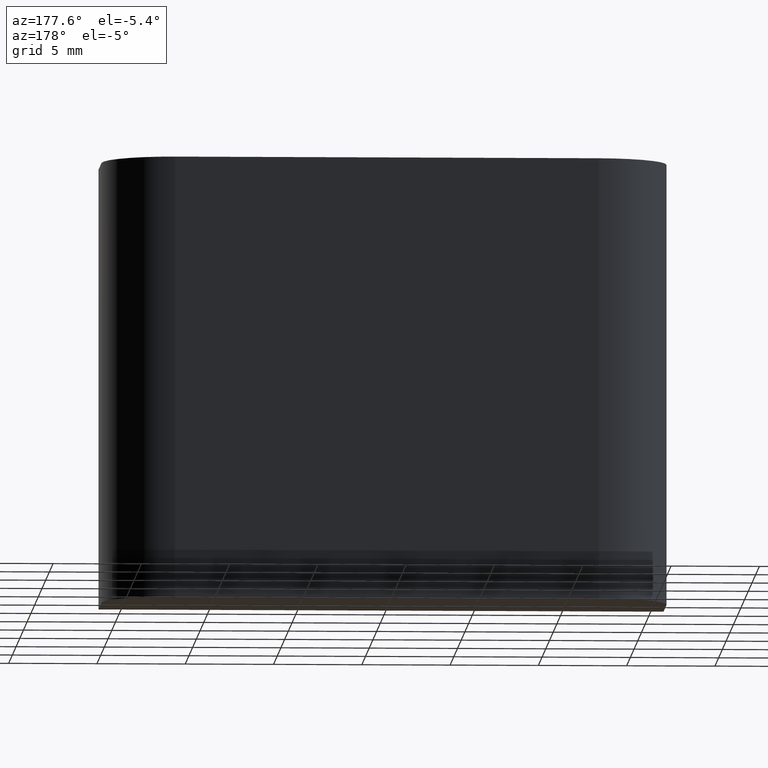
[diagram: clean part render]
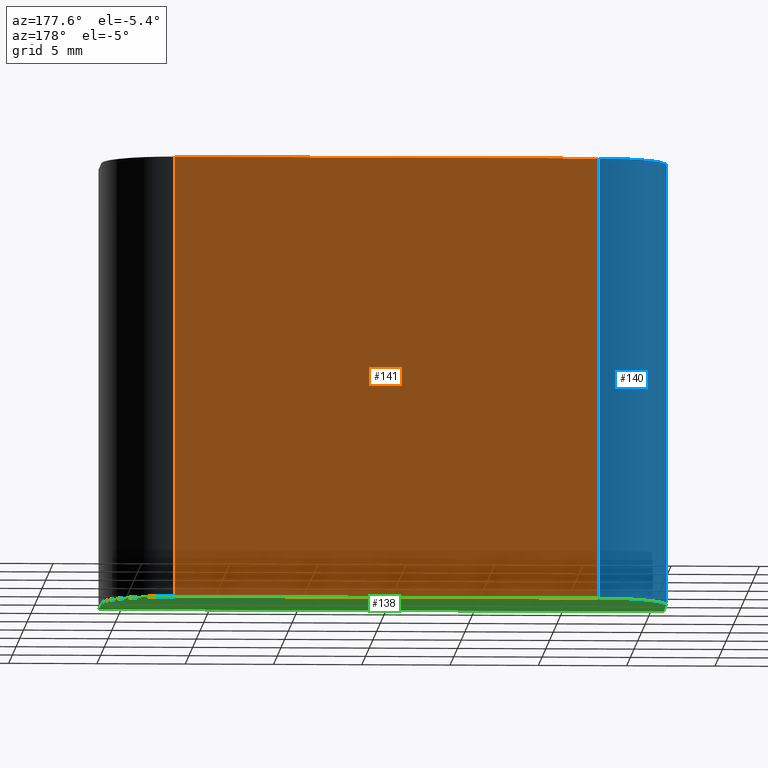
[diagram: same view with three faces highlighted in distinct colors, each labeled with its STEP entity id]
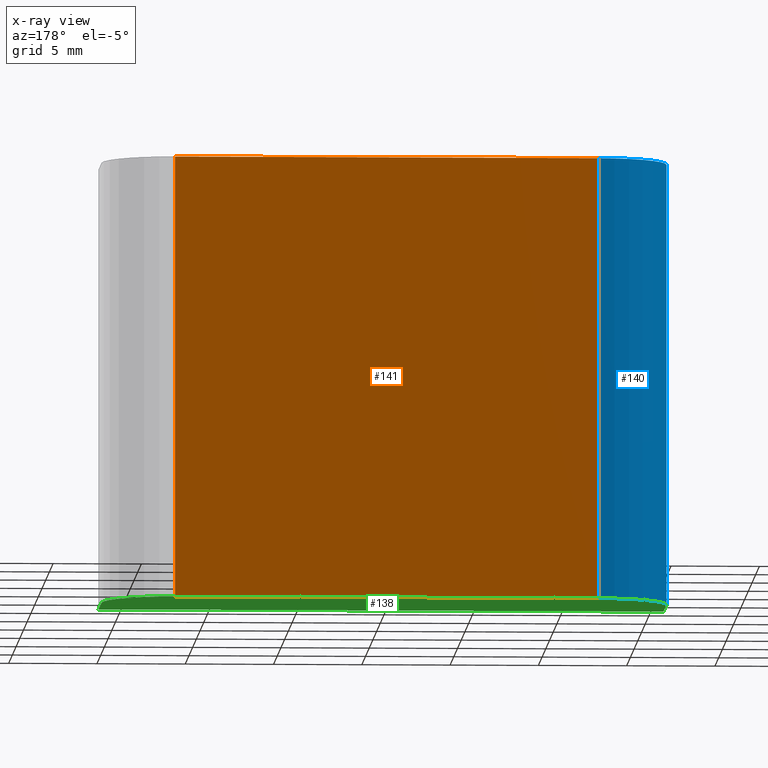
[diagram: x-ray of the same camera — body ghosted, the three highlighted faces saturated]
A machine part, auxiliary view with three faces highlighted in distinct colors.
The next image is the same camera in x-ray (body ghosted, the three faces saturated) — at least one of them is partly hidden behind the body in this view.
Their STEP definitions:

[orange] entity #141 — the highlighted planar face has unit normal (0, 1, 0).
#21=FACE_OUTER_BOUND('',#29,.T.);
#29=EDGE_LOOP('',(#110,#111,#112,#113));
#41=LINE('',#230,#55);
#45=LINE('',#241,#59);
#46=LINE('',#244,#60);
#47=LINE('',#245,#61);
#55=VECTOR('',#187,10.);
#59=VECTOR('',#199,10.);
#60=VECTOR('',#202,10.);
#61=VECTOR('',#203,10.);
#70=VERTEX_POINT('',#227);
#71=VERTEX_POINT('',#229);
#74=VERTEX_POINT('',#239);
#75=VERTEX_POINT('',#243);
#82=EDGE_CURVE('',#71,#70,#41,.T.);
#88=EDGE_CURVE('',#70,#74,#45,.T.);
#89=EDGE_CURVE('',#74,#75,#46,.T.);
#90=EDGE_CURVE('',#71,#75,#47,.T.);
#110=ORIENTED_EDGE('',*,*,#89,.T.);
#111=ORIENTED_EDGE('',*,*,#90,.F.);
#112=ORIENTED_EDGE('',*,*,#82,.T.);
#113=ORIENTED_EDGE('',*,*,#88,.T.);
#134=PLANE('',#172);
#141=ADVANCED_FACE('',(#21),#134,.T.);
#172=AXIS2_PLACEMENT_3D('',#242,#200,#201);
#187=DIRECTION('',(-1.,0.,0.));
#199=DIRECTION('',(0.,0.,1.));
#200=DIRECTION('center_axis',(0.,1.,0.));
#201=DIRECTION('ref_axis',(0.,0.,1.));
#202=DIRECTION('',(1.,0.,0.));
#203=DIRECTION('',(0.,0.,1.));
#227=CARTESIAN_POINT('',(-12.,4.,-12.5));
#229=CARTESIAN_POINT('',(12.,4.,-12.5));
#230=CARTESIAN_POINT('',(12.,4.,-12.5));
#239=CARTESIAN_POINT('',(-12.,4.,12.5));
#241=CARTESIAN_POINT('',(-12.,4.,0.));
#242=CARTESIAN_POINT('Origin',(-12.,4.,0.));
#243=CARTESIAN_POINT('',(12.,4.,12.5));
#244=CARTESIAN_POINT('',(12.,4.,12.5));
#245=CARTESIAN_POINT('',(12.,4.,0.));

[blue] entity #140 — the highlighted cylindrical surface (partial cylindrical patch) has radius 4 mm, axis along (0, 0, 1).
#16=CYLINDRICAL_SURFACE('',#170,4.);
#20=FACE_OUTER_BOUND('',#28,.T.);
#28=EDGE_LOOP('',(#106,#107,#108,#109));
#34=CIRCLE('',#167,4.);
#36=CIRCLE('',#171,4.);
#43=LINE('',#236,#57);
#45=LINE('',#241,#59);
#57=VECTOR('',#193,10.);
#59=VECTOR('',#199,10.);
#69=VERTEX_POINT('',#225);
#70=VERTEX_POINT('',#227);
#73=VERTEX_POINT('',#234);
#74=VERTEX_POINT('',#239);
#81=EDGE_CURVE('',#70,#69,#34,.T.);
#85=EDGE_CURVE('',#69,#73,#43,.T.);
#87=EDGE_CURVE('',#73,#74,#36,.T.);
#88=EDGE_CURVE('',#70,#74,#45,.T.);
#106=ORIENTED_EDGE('',*,*,#87,.T.);
#107=ORIENTED_EDGE('',*,*,#88,.F.);
#108=ORIENTED_EDGE('',*,*,#81,.T.);
#109=ORIENTED_EDGE('',*,*,#85,.T.);
#140=ADVANCED_FACE('',(#20),#16,.T.);
#167=AXIS2_PLACEMENT_3D('',#228,#185,#186);
#170=AXIS2_PLACEMENT_3D('',#238,#195,#196);
#171=AXIS2_PLACEMENT_3D('',#240,#197,#198);
#185=DIRECTION('center_axis',(0.,0.,1.));
#186=DIRECTION('ref_axis',(0.,1.,0.));
#193=DIRECTION('',(0.,0.,1.));
#195=DIRECTION('center_axis',(0.,0.,1.));
#196=DIRECTION('ref_axis',(0.,1.,0.));
#197=DIRECTION('center_axis',(0.,0.,-1.));
#198=DIRECTION('ref_axis',(0.,1.,0.));
#199=DIRECTION('',(0.,0.,1.));
#225=CARTESIAN_POINT('',(-16.,7.34788079488413E-16,-12.5));
#227=CARTESIAN_POINT('',(-12.,4.,-12.5));
#228=CARTESIAN_POINT('Origin',(-12.,0.,-12.5));
#234=CARTESIAN_POINT('',(-16.,7.34788079488413E-16,12.5));
#236=CARTESIAN_POINT('',(-16.,7.34788079488413E-16,0.));
#238=CARTESIAN_POINT('Origin',(-12.,0.,0.));
#239=CARTESIAN_POINT('',(-12.,4.,12.5));
#240=CARTESIAN_POINT('Origin',(-12.,0.,12.5));
#241=CARTESIAN_POINT('',(-12.,4.,0.));

[green] entity #138 — the highlighted planar face has unit normal (0, 0, 1).
#18=FACE_OUTER_BOUND('',#26,.T.);
#26=EDGE_LOOP('',(#96,#97,#98,#99,#100,#101));
#34=CIRCLE('',#167,4.);
#35=CIRCLE('',#168,4.);
#38=LINE('',#222,#52);
#39=LINE('',#224,#53);
#40=LINE('',#226,#54);
#41=LINE('',#230,#55);
#52=VECTOR('',#182,10.);
#53=VECTOR('',#183,10.);
#54=VECTOR('',#184,10.);
#55=VECTOR('',#187,10.);
#66=VERTEX_POINT('',#220);
#67=VERTEX_POINT('',#221);
#68=VERTEX_POINT('',#223);
#69=VERTEX_POINT('',#225);
#70=VERTEX_POINT('',#227);
#71=VERTEX_POINT('',#229);
#78=EDGE_CURVE('',#66,#67,#38,.T.);
#79=EDGE_CURVE('',#68,#66,#39,.T.);
#80=EDGE_CURVE('',#69,#68,#40,.T.);
#81=EDGE_CURVE('',#70,#69,#34,.T.);
#82=EDGE_CURVE('',#71,#70,#41,.T.);
#83=EDGE_CURVE('',#67,#71,#35,.T.);
#96=ORIENTED_EDGE('',*,*,#78,.F.);
#97=ORIENTED_EDGE('',*,*,#79,.F.);
#98=ORIENTED_EDGE('',*,*,#80,.F.);
#99=ORIENTED_EDGE('',*,*,#81,.F.);
#100=ORIENTED_EDGE('',*,*,#82,.F.);
#101=ORIENTED_EDGE('',*,*,#83,.F.);
#132=PLANE('',#166);
#138=ADVANCED_FACE('',(#18),#132,.F.);
#166=AXIS2_PLACEMENT_3D('',#219,#180,#181);
#167=AXIS2_PLACEMENT_3D('',#228,#185,#186);
#168=AXIS2_PLACEMENT_3D('',#231,#188,#189);
#180=DIRECTION('center_axis',(0.,0.,1.));
#181=DIRECTION('ref_axis',(1.,0.,0.));
#182=DIRECTION('',(0.,1.,0.));
#183=DIRECTION('',(1.,0.,0.));
#184=DIRECTION('',(0.,-1.,0.));
#185=DIRECTION('center_axis',(0.,0.,1.));
#186=DIRECTION('ref_axis',(0.,1.,0.));
#187=DIRECTION('',(-1.,0.,0.));
#188=DIRECTION('center_axis',(0.,0.,1.));
#189=DIRECTION('ref_axis',(1.,1.83697019872103E-16,0.));
#219=CARTESIAN_POINT('Origin',(-1.11022302462516E-15,-0.217904238048994,
-12.5));
#220=CARTESIAN_POINT('',(16.,-4.,-12.5));
#221=CARTESIAN_POINT('',(16.,7.34788079488413E-16,-12.5));
#222=CARTESIAN_POINT('',(16.,-4.,-12.5));
#223=CARTESIAN_POINT('',(-16.,-4.,-12.5));
#224=CARTESIAN_POINT('',(-16.,-4.,-12.5));
#225=CARTESIAN_POINT('',(-16.,7.34788079488413E-16,-12.5));
#226=CARTESIAN_POINT('',(-16.,7.34788079488413E-16,-12.5));
#227=CARTESIAN_POINT('',(-12.,4.,-12.5));
#228=CARTESIAN_POINT('Origin',(-12.,0.,-12.5));
#229=CARTESIAN_POINT('',(12.,4.,-12.5));
#230=CARTESIAN_POINT('',(12.,4.,-12.5));
#231=CARTESIAN_POINT('Origin',(12.,0.,-12.5));